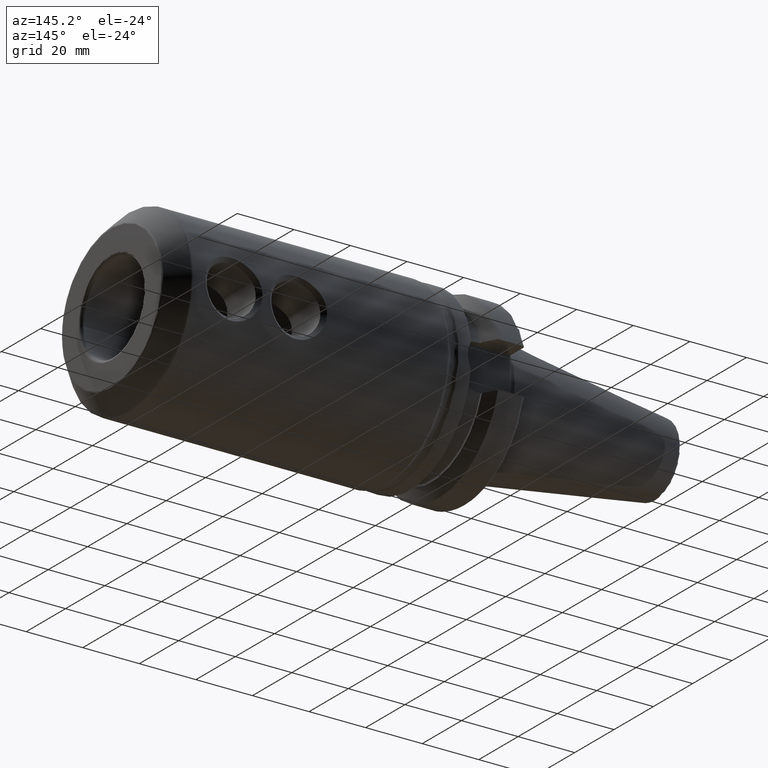
[diagram: clean part render]
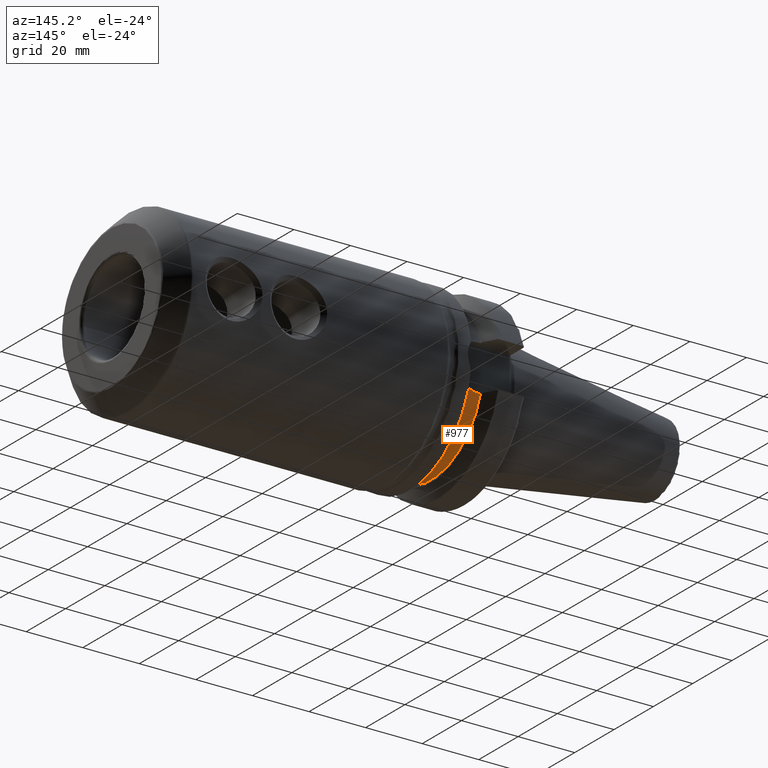
[diagram: same view with one face highlighted and labeled with its STEP entity id]
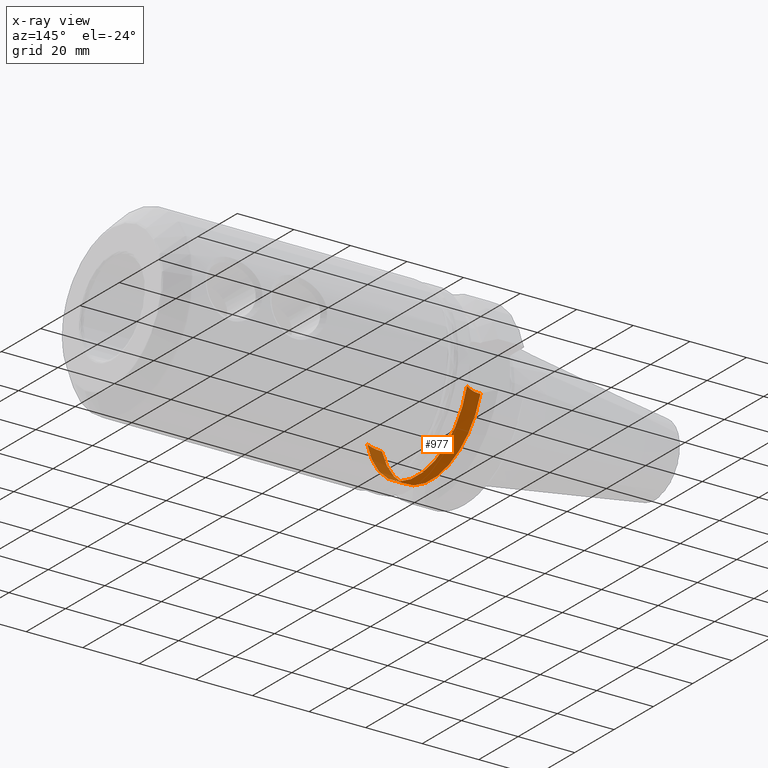
[diagram: x-ray of the same camera — body ghosted, the highlighted face saturated]
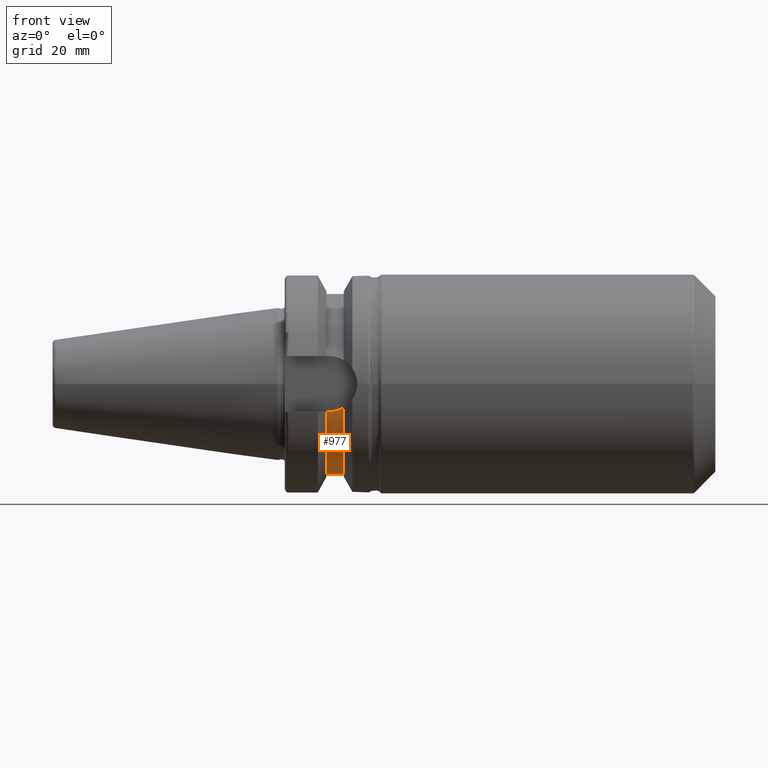
[diagram: same view with one face highlighted and labeled with its STEP entity id]
A machine part, auxiliary view. The second image highlights one B-rep face of the part: STEP entity #977.
The next image is the same camera in x-ray: the body ghosted, the highlighted face saturated — about 19% of this face is hidden behind the body in this view.
A second angle (front view) of the same face is appended — the face is thin or edge-on in the first view.
In plain terms, the highlighted cylindrical surface (partial cylindrical patch) has radius 26.3 mm, axis along (1, 0, 0).
Its self-contained STEP definition (entity closure, byte-faithful):
#42=B_SPLINE_CURVE_WITH_KNOTS('',3,(#2077,#2078,#2079,#2080,#2081,#2082),
 .UNSPECIFIED.,.F.,.F.,(4,2,4),(2.02427460070182,2.13747311195296,2.44288295924093),
 .UNSPECIFIED.);
#49=B_SPLINE_CURVE_WITH_KNOTS('',3,(#2182,#2183,#2184,#2185,#2186,#2187),
 .UNSPECIFIED.,.F.,.F.,(4,2,4),(2.44288295924093,2.7482928065289,2.86149131778004),
 .UNSPECIFIED.);
#77=LINE('',#2139,#127);
#84=LINE('',#2181,#134);
#127=VECTOR('',#1308,10.);
#134=VECTOR('',#1329,10.);
#164=CYLINDRICAL_SURFACE('',#1097,26.3);
#228=FACE_OUTER_BOUND('',#293,.T.);
#293=EDGE_LOOP('',(#798,#799,#800,#801,#802,#803));
#364=CIRCLE('',#1096,26.3);
#365=CIRCLE('',#1098,26.3);
#437=VERTEX_POINT('',#2075);
#438=VERTEX_POINT('',#2076);
#451=VERTEX_POINT('',#2138);
#458=VERTEX_POINT('',#2174);
#459=VERTEX_POINT('',#2178);
#460=VERTEX_POINT('',#2180);
#554=EDGE_CURVE('',#437,#438,#42,.T.);
#570=EDGE_CURVE('',#438,#451,#77,.T.);
#580=EDGE_CURVE('',#437,#458,#364,.T.);
#582=EDGE_CURVE('',#451,#459,#365,.T.);
#583=EDGE_CURVE('',#459,#460,#84,.T.);
#584=EDGE_CURVE('',#460,#458,#49,.T.);
#798=ORIENTED_EDGE('',*,*,#554,.T.);
#799=ORIENTED_EDGE('',*,*,#570,.T.);
#800=ORIENTED_EDGE('',*,*,#582,.T.);
#801=ORIENTED_EDGE('',*,*,#583,.T.);
#802=ORIENTED_EDGE('',*,*,#584,.T.);
#803=ORIENTED_EDGE('',*,*,#580,.F.);
#977=ADVANCED_FACE('',(#228),#164,.T.);
#1096=AXIS2_PLACEMENT_3D('',#2175,#1322,#1323);
#1097=AXIS2_PLACEMENT_3D('',#2177,#1325,#1326);
#1098=AXIS2_PLACEMENT_3D('',#2179,#1327,#1328);
#1308=DIRECTION('',(-1.,0.,0.));
#1322=DIRECTION('center_axis',(1.,0.,0.));
#1323=DIRECTION('ref_axis',(0.,0.,-1.));
#1325=DIRECTION('center_axis',(1.,0.,0.));
#1326=DIRECTION('ref_axis',(0.,1.,0.));
#1327=DIRECTION('center_axis',(1.,0.,0.));
#1328=DIRECTION('ref_axis',(0.,0.,-1.));
#1329=DIRECTION('',(1.,0.,0.));
#2075=CARTESIAN_POINT('',(19.1,-25.3793222919762,-6.89782574439221));
#2076=CARTESIAN_POINT('',(14.95,-25.0377215417058,-8.05));
#2077=CARTESIAN_POINT('Ctrl Pts',(19.1,-25.3793222919762,-6.89782574439221));
#2078=CARTESIAN_POINT('Ctrl Pts',(18.7623374744972,-25.3241080721198,-7.10097664045187));
#2079=CARTESIAN_POINT('Ctrl Pts',(18.4068260684762,-25.2726009715968,-7.28086186600679));
#2080=CARTESIAN_POINT('Ctrl Pts',(17.0490724969254,-25.1063150193149,-7.84520188991776));
#2081=CARTESIAN_POINT('Ctrl Pts',(15.9680328242932,-25.0377215417058,-8.05));
#2082=CARTESIAN_POINT('Ctrl Pts',(14.95,-25.0377215417058,-8.05));
#2138=CARTESIAN_POINT('',(14.1,-25.0377215417058,-8.05));
#2139=CARTESIAN_POINT('',(16.6,-25.0377215417058,-8.05));
#2174=CARTESIAN_POINT('',(19.1,25.3793222919762,-6.89782574439221));
#2175=CARTESIAN_POINT('Origin',(19.1,0.,0.));
#2177=CARTESIAN_POINT('Origin',(16.6,0.,0.));
#2178=CARTESIAN_POINT('',(14.1,25.0377215417058,-8.05));
#2179=CARTESIAN_POINT('Origin',(14.1,0.,0.));
#2180=CARTESIAN_POINT('',(14.95,25.0377215417058,-8.05));
#2181=CARTESIAN_POINT('',(16.6,25.0377215417058,-8.05));
#2182=CARTESIAN_POINT('Ctrl Pts',(14.95,25.0377215417058,-8.05));
#2183=CARTESIAN_POINT('Ctrl Pts',(15.9680328242932,25.0377215417058,-8.05));
#2184=CARTESIAN_POINT('Ctrl Pts',(17.0490724969254,25.1063150193149,-7.84520188991776));
#2185=CARTESIAN_POINT('Ctrl Pts',(18.4068260684762,25.2726009715968,-7.28086186600679));
#2186=CARTESIAN_POINT('Ctrl Pts',(18.7623374744972,25.3241080721198,-7.10097664045187));
#2187=CARTESIAN_POINT('Ctrl Pts',(19.1,25.3793222919762,-6.89782574439221));